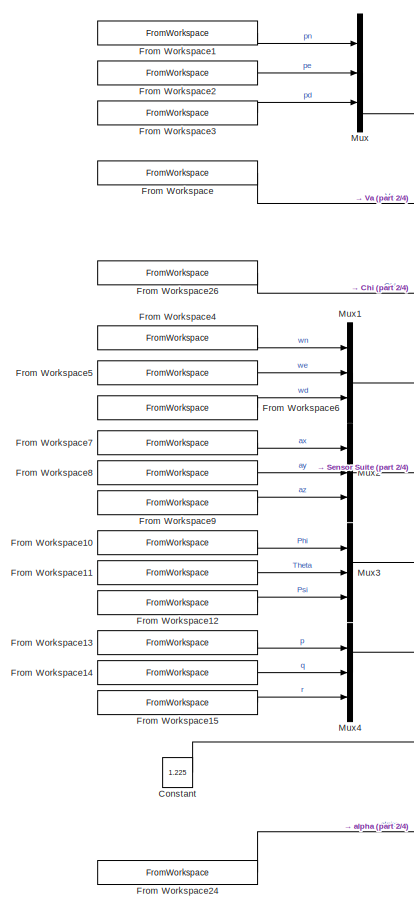
[diagram: root canvas - part 1/4, middle left region]
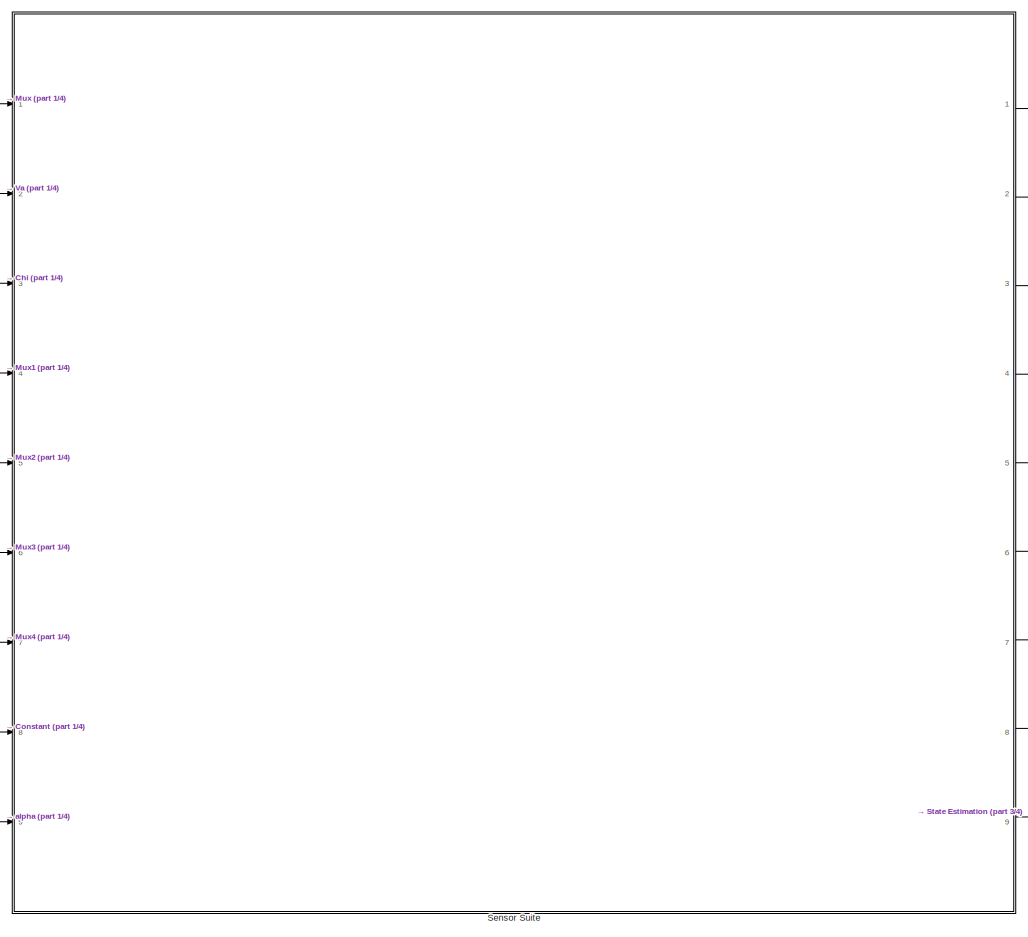
[diagram: root canvas - part 2/4, central region]
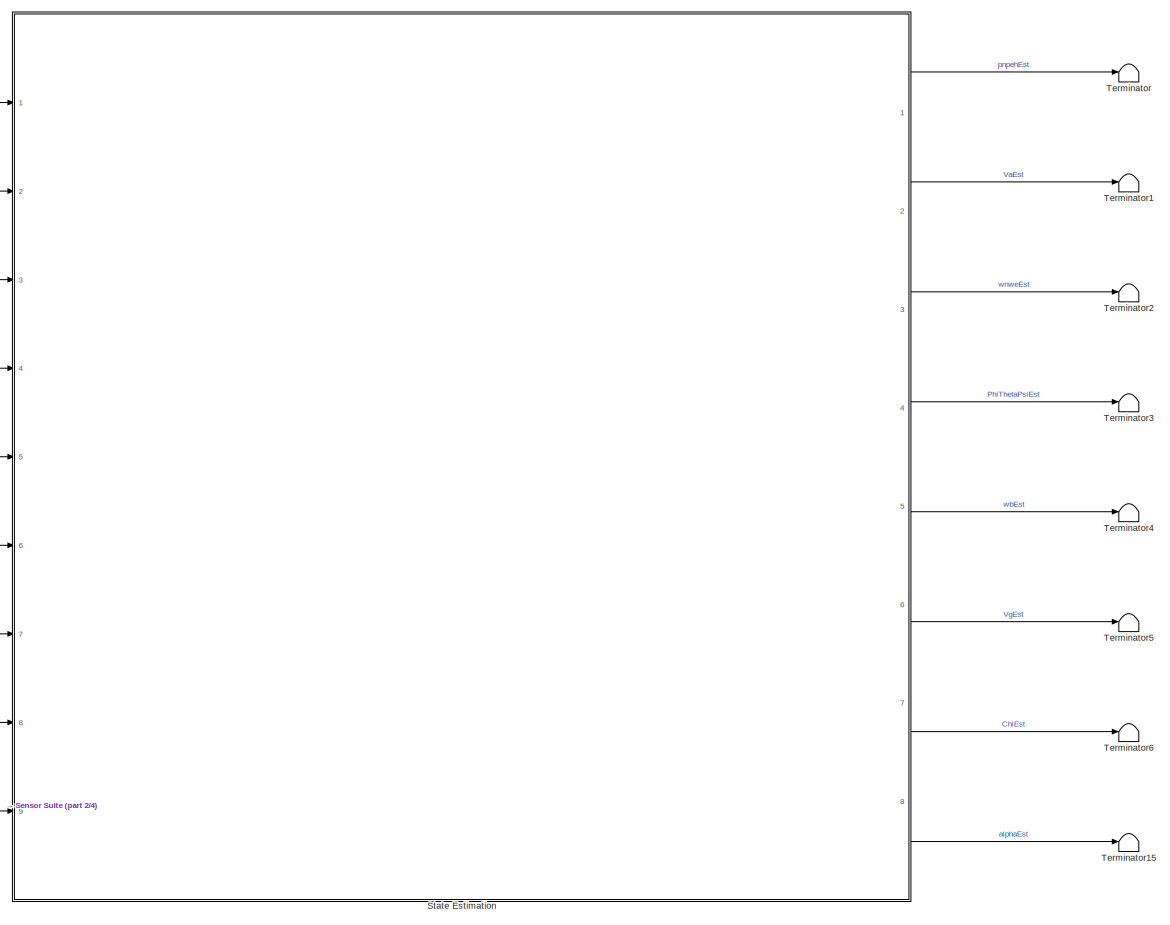
[diagram: root canvas - part 3/4, middle right region]
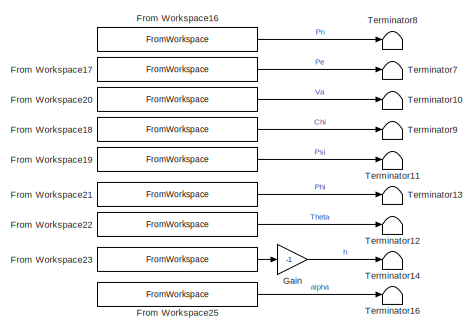
[diagram: root canvas - part 4/4, bottom center region]
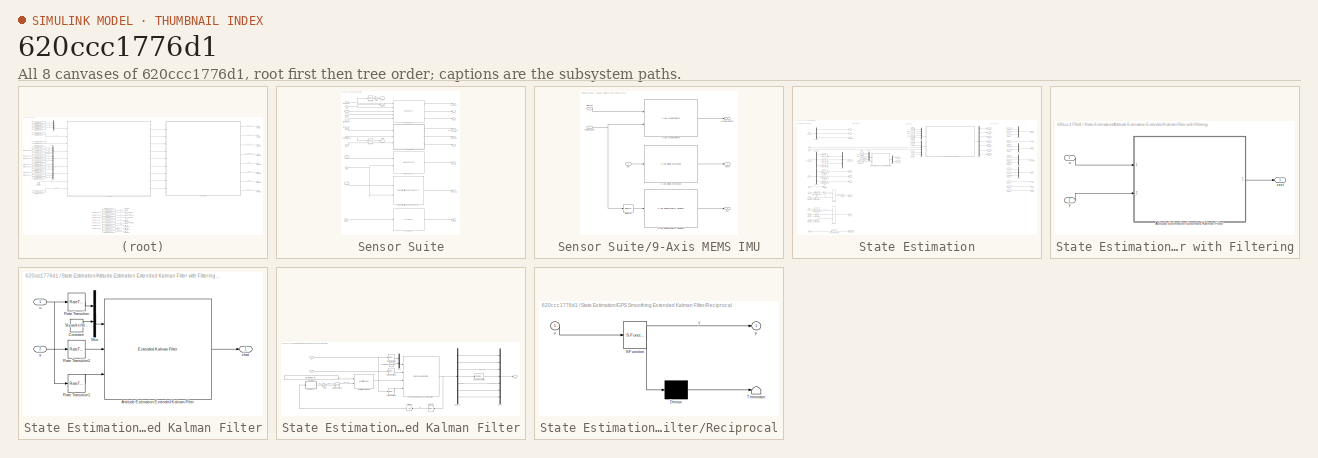
[diagram: thumbnail index - all 8 canvases of the model, root first then tree order]
MODEL slx_620ccc1776d1
KIND model
CONFIG AbsTol = auto
CONFIG EnableMultiTasking = off
CONFIG FixedStep = 0.001
CONFIG MaxStep = auto
CONFIG MinStep = auto
CONFIG RelTol = 1e-3
CONFIG SampleTimeConstraint = Unconstrained
CONFIG Solver = FixedStepAuto
CONFIG SolverName = FixedStepAuto
CONFIG StartTime = 0.0
CONFIG StopTime = 120
BLOCK [Constant] Constant
  Value = 1.225
BLOCK [FromWorkspace] From Workspace
  Interpolate = off
  OutputAfterFinalValue = Holding final value
  SampleTime = SkywalkerX8.Sensors.TestProfile.Time(2)
  VariableName = SkywalkerX8.Sensors.TestProfile.Va
  ZeroCross = on
BLOCK [FromWorkspace] From Workspace1
  Interpolate = off
  OutputAfterFinalValue = Holding final value
  SampleTime = SkywalkerX8.Sensors.TestProfile.Time(2)
  VariableName = SkywalkerX8.Sensors.TestProfile.Pn
  ZeroCross = on
BLOCK [FromWorkspace] From Workspace10
  Interpolate = off
  OutputAfterFinalValue = Holding final value
  SampleTime = SkywalkerX8.Sensors.TestProfile.Time(2)
  VariableName = SkywalkerX8.Sensors.TestProfile.Phi
  ZeroCross = on
BLOCK [FromWorkspace] From Workspace11
  Interpolate = off
  OutputAfterFinalValue = Holding final value
  SampleTime = SkywalkerX8.Sensors.TestProfile.Time(2)
  VariableName = SkywalkerX8.Sensors.TestProfile.Theta
  ZeroCross = on
BLOCK [FromWorkspace] From Workspace12
  Interpolate = off
  OutputAfterFinalValue = Holding final value
  SampleTime = SkywalkerX8.Sensors.TestProfile.Time(2)
  VariableName = SkywalkerX8.Sensors.TestProfile.Psi
  ZeroCross = on
BLOCK [FromWorkspace] From Workspace13
  Interpolate = off
  OutputAfterFinalValue = Holding final value
  SampleTime = SkywalkerX8.Sensors.TestProfile.Time(2)
  VariableName = SkywalkerX8.Sensors.TestProfile.p
  ZeroCross = on
BLOCK [FromWorkspace] From Workspace14
  Interpolate = off
  OutputAfterFinalValue = Holding final value
  SampleTime = SkywalkerX8.Sensors.TestProfile.Time(2)
  VariableName = SkywalkerX8.Sensors.TestProfile.q
  ZeroCross = on
BLOCK [FromWorkspace] From Workspace15
  Interpolate = off
  OutputAfterFinalValue = Holding final value
  SampleTime = SkywalkerX8.Sensors.TestProfile.Time(2)
  VariableName = SkywalkerX8.Sensors.TestProfile.r
  ZeroCross = on
BLOCK [FromWorkspace] From Workspace16
  Interpolate = off
  OutputAfterFinalValue = Holding final value
  VariableName = SkywalkerX8.Sensors.TestProfile.Pn
  ZeroCross = on
BLOCK [FromWorkspace] From Workspace17
  Interpolate = off
  OutputAfterFinalValue = Holding final value
  VariableName = SkywalkerX8.Sensors.TestProfile.Pe
  ZeroCross = on
BLOCK [FromWorkspace] From Workspace18
  Interpolate = off
  OutputAfterFinalValue = Holding final value
  VariableName = SkywalkerX8.Sensors.TestProfile.Chi
  ZeroCross = on
BLOCK [FromWorkspace] From Workspace19
  Interpolate = off
  OutputAfterFinalValue = Holding final value
  VariableName = SkywalkerX8.Sensors.TestProfile.Psi
  ZeroCross = on
BLOCK [FromWorkspace] From Workspace2
  Interpolate = off
  OutputAfterFinalValue = Holding final value
  SampleTime = SkywalkerX8.Sensors.TestProfile.Time(2)
  VariableName = SkywalkerX8.Sensors.TestProfile.Pe
  ZeroCross = on
BLOCK [FromWorkspace] From Workspace20
  Interpolate = off
  OutputAfterFinalValue = Holding final value
  VariableName = SkywalkerX8.Sensors.TestProfile.Va
  ZeroCross = on
BLOCK [FromWorkspace] From Workspace21
  Interpolate = off
  OutputAfterFinalValue = Holding final value
  VariableName = SkywalkerX8.Sensors.TestProfile.Phi
  ZeroCross = on
BLOCK [FromWorkspace] From Workspace22
  Interpolate = off
  OutputAfterFinalValue = Holding final value
  VariableName = SkywalkerX8.Sensors.TestProfile.Theta
  ZeroCross = on
BLOCK [FromWorkspace] From Workspace23
  Interpolate = off
  OutputAfterFinalValue = Holding final value
  SampleTime = SkywalkerX8.Sensors.TestProfile.Time(2)
  VariableName = SkywalkerX8.Sensors.TestProfile.Pd
  ZeroCross = on
BLOCK [FromWorkspace] From Workspace24
  Interpolate = off
  OutputAfterFinalValue = Holding final value
  SampleTime = SkywalkerX8.Sensors.TestProfile.Time(2)
  VariableName = SkywalkerX8.Sensors.TestProfile.alpha
  ZeroCross = on
BLOCK [FromWorkspace] From Workspace25
  Interpolate = off
  OutputAfterFinalValue = Holding final value
  SampleTime = SkywalkerX8.Sensors.TestProfile.Time(2)
  VariableName = SkywalkerX8.Sensors.TestProfile.alpha
  ZeroCross = on
BLOCK [FromWorkspace] From Workspace26
  Interpolate = off
  OutputAfterFinalValue = Holding final value
  SampleTime = SkywalkerX8.Sensors.TestProfile.Time(2)
  VariableName = SkywalkerX8.Sensors.TestProfile.Chi
  ZeroCross = on
BLOCK [FromWorkspace] From Workspace3
  Interpolate = off
  OutputAfterFinalValue = Holding final value
  SampleTime = SkywalkerX8.Sensors.TestProfile.Time(2)
  VariableName = SkywalkerX8.Sensors.TestProfile.Pd
  ZeroCross = on
BLOCK [FromWorkspace] From Workspace4
  Interpolate = off
  OutputAfterFinalValue = Holding final value
  SampleTime = SkywalkerX8.Sensors.TestProfile.Time(2)
  VariableName = SkywalkerX8.Sensors.TestProfile.wn
  ZeroCross = on
BLOCK [FromWorkspace] From Workspace5
  Interpolate = off
  OutputAfterFinalValue = Holding final value
  SampleTime = SkywalkerX8.Sensors.TestProfile.Time(2)
  VariableName = SkywalkerX8.Sensors.TestProfile.we
  ZeroCross = on
BLOCK [FromWorkspace] From Workspace6
  Interpolate = off
  OutputAfterFinalValue = Holding final value
  SampleTime = SkywalkerX8.Sensors.TestProfile.Time(2)
  VariableName = SkywalkerX8.Sensors.TestProfile.wd
  ZeroCross = on
BLOCK [FromWorkspace] From Workspace7
  Interpolate = off
  OutputAfterFinalValue = Holding final value
  SampleTime = SkywalkerX8.Sensors.TestProfile.Time(2)
  VariableName = SkywalkerX8.Sensors.TestProfile.ax
  ZeroCross = on
BLOCK [FromWorkspace] From Workspace8
  Interpolate = off
  OutputAfterFinalValue = Holding final value
  SampleTime = SkywalkerX8.Sensors.TestProfile.Time(2)
  VariableName = SkywalkerX8.Sensors.TestProfile.ay
  ZeroCross = on
BLOCK [FromWorkspace] From Workspace9
  Interpolate = off
  OutputAfterFinalValue = Holding final value
  SampleTime = SkywalkerX8.Sensors.TestProfile.Time(2)
  VariableName = SkywalkerX8.Sensors.TestProfile.az
  ZeroCross = on
BLOCK [Gain] Gain
  Gain = -1
  OutDataTypeStr = Inherit: Inherit via internal rule
  ParamDataTypeStr = Inherit: Inherit via internal rule
  SaturateOnIntegerOverflow = off
BLOCK [Mux] Mux
  DisplayOption = bar
  Inputs = 3
  Ports = [3, 1]
BLOCK [Mux] Mux1
  DisplayOption = bar
  Inputs = 3
  Ports = [3, 1]
BLOCK [Mux] Mux2
  DisplayOption = bar
  Inputs = 3
  Ports = [3, 1]
BLOCK [Mux] Mux3
  DisplayOption = bar
  Inputs = 3
  Ports = [3, 1]
BLOCK [Mux] Mux4
  DisplayOption = bar
  Inputs = 3
  Ports = [3, 1]
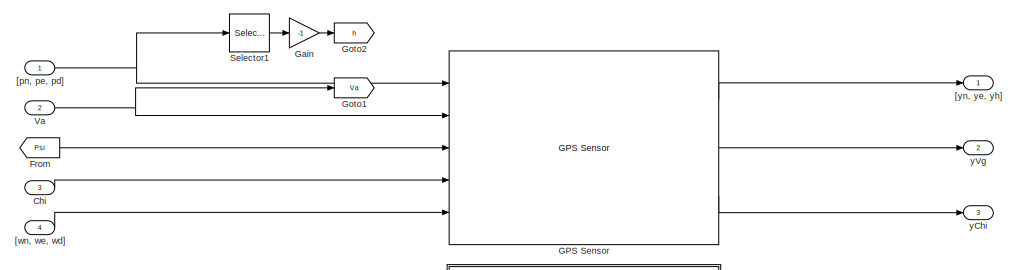
[diagram: Sensor Suite - part 1/2, full width, top band]
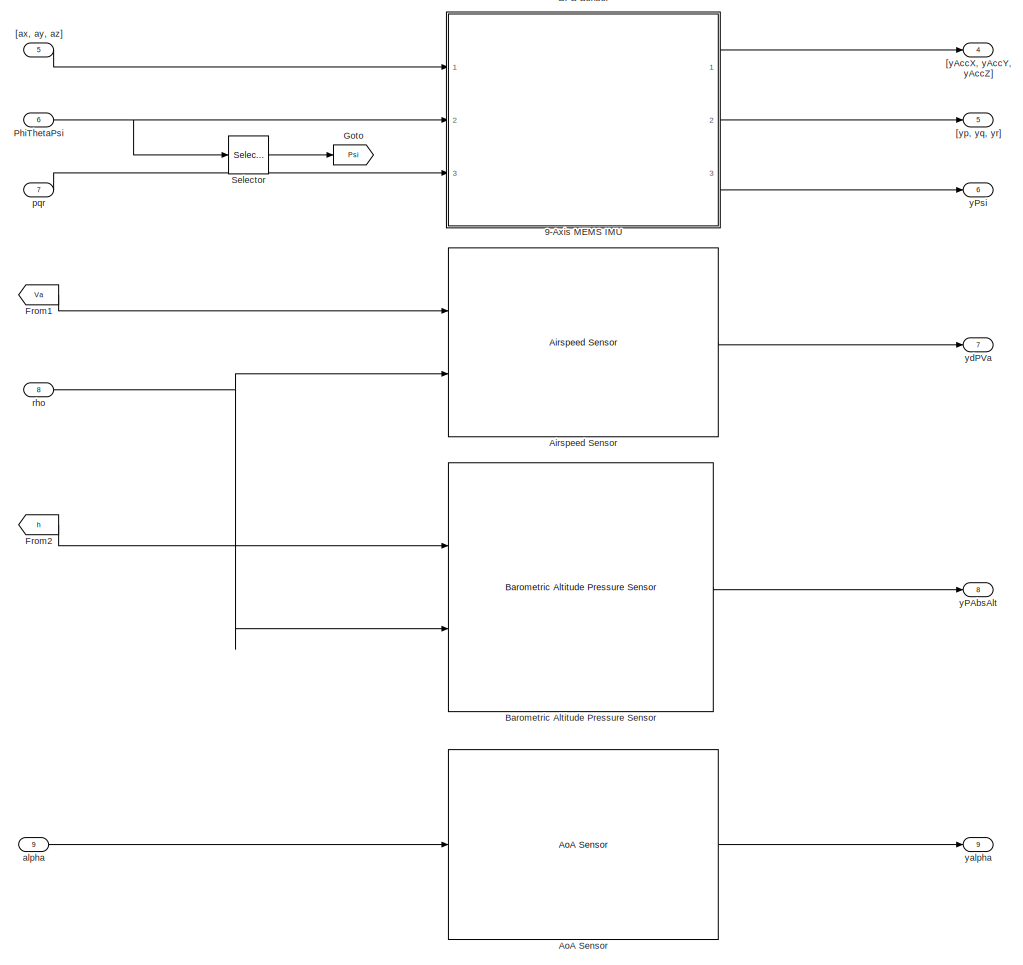
[diagram: Sensor Suite - part 2/2, most of the canvas]
BLOCK [SubSystem] Sensor Suite
  Ports = [9, 9]
  RequestExecContextInheritance = off
BLOCK [SubSystem] Sensor Suite/9-Axis MEMS IMU
  Ports = [3, 3]
  RequestExecContextInheritance = off
BLOCK [Reference] Sensor Suite/9-Axis MEMS IMU/3-Axis Accelerometer  REF=sensors/3-Axis Accelerometer  (lib defined in slx_03e243f1d19c, slx_0ec61ea8f7b5, +8 more)
  Ports = [2, 1]
  SourceBlock = sensors/3-Axis Accelerometer
BLOCK [Reference] Sensor Suite/9-Axis MEMS IMU/3-Axis MEMS Gyroscope  REF=sensors/3-Axis MEMS Gyroscope  (lib defined in slx_03e243f1d19c, slx_0ec61ea8f7b5, +8 more)
  Ports = [1, 1]
  SourceBlock = sensors/3-Axis MEMS Gyroscope
BLOCK [Reference] Sensor Suite/9-Axis MEMS IMU/3-Axis Magnetometer Compass  REF=sensors/3-Axis Magnetometer Compass  (lib defined in slx_03e243f1d19c, slx_0ec61ea8f7b5, +8 more)
  Ports = [1, 1]
  SourceBlock = sensors/3-Axis Magnetometer Compass
BLOCK [Inport] Sensor Suite/9-Axis MEMS IMU/PhiThetaPsi
  IconDisplay = Port number
  Port = 2
BLOCK [Selector] Sensor Suite/9-Axis MEMS IMU/Selector
  IndexOptions = Index vector (dialog)
  Indices = 3
  InputPortWidth = 3
  OutputSizes = 1
  Ports = [1, 1]
BLOCK [Inport] Sensor Suite/9-Axis MEMS IMU/ainertial
  IconDisplay = Port number
BLOCK [Inport] Sensor Suite/9-Axis MEMS IMU/pqr
  IconDisplay = Port number
  Port = 3
BLOCK [Outport] Sensor Suite/9-Axis MEMS IMU/yAccelerometer
  IconDisplay = Port number
BLOCK [Outport] Sensor Suite/9-Axis MEMS IMU/yGyro
  IconDisplay = Port number
  Port = 2
BLOCK [Outport] Sensor Suite/9-Axis MEMS IMU/yPsi
  IconDisplay = Port number
  Port = 3
BLOCK [Reference] Sensor Suite/Airspeed Sensor  REF=sensors/Airspeed Sensor  (lib defined in slx_03e243f1d19c, slx_0ec61ea8f7b5, +8 more)
  Ports = [2, 1]
  SourceBlock = sensors/Airspeed Sensor
BLOCK [Reference] Sensor Suite/AoA Sensor  REF=sensors/AoA Sensor  (lib defined in slx_03e243f1d19c, slx_0ec61ea8f7b5, +8 more)
  Ports = [1, 1]
  SourceBlock = sensors/AoA Sensor
BLOCK [Reference] Sensor Suite/Barometric Altitude Pressure Sensor  REF=sensors/Barometric Altitude Pressure Sensor  (lib defined in slx_03e243f1d19c, slx_0ec61ea8f7b5, +8 more)
  Ports = [2, 1]
  SourceBlock = sensors/Barometric Altitude Pressure Sensor
BLOCK [Inport] Sensor Suite/Chi
  IconDisplay = Port number
  Port = 3
BLOCK [From] Sensor Suite/From
  GotoTag = Psi
BLOCK [From] Sensor Suite/From1
  GotoTag = Va
BLOCK [From] Sensor Suite/From2
  GotoTag = h
BLOCK [Reference] Sensor Suite/GPS Sensor  REF=sensors/GPS Sensor  (lib defined in slx_03e243f1d19c, slx_0ec61ea8f7b5, +8 more)
  Ports = [5, 3]
  SourceBlock = sensors/GPS Sensor
BLOCK [Gain] Sensor Suite/Gain
  Gain = -1
  OutDataTypeStr = Inherit: Inherit via internal rule
  ParamDataTypeStr = Inherit: Inherit via internal rule
  SaturateOnIntegerOverflow = off
BLOCK [Goto] Sensor Suite/Goto
  GotoTag = Psi
BLOCK [Goto] Sensor Suite/Goto1
  GotoTag = Va
BLOCK [Goto] Sensor Suite/Goto2
  GotoTag = h
BLOCK [Inport] Sensor Suite/PhiThetaPsi
  IconDisplay = Port number
  Port = 6
BLOCK [Selector] Sensor Suite/Selector
  IndexOptions = Index vector (dialog)
  Indices = 3
  InputPortWidth = 3
  OutputSizes = 1
  Ports = [1, 1]
BLOCK [Selector] Sensor Suite/Selector1
  IndexOptions = Index vector (dialog)
  Indices = 3
  InputPortWidth = 3
  OutputSizes = 1
  Ports = [1, 1]
BLOCK [Inport] Sensor Suite/Va
  IconDisplay = Port number
  Port = 2
BLOCK [Inport] Sensor Suite/[ax, ay, az]
  IconDisplay = Port number
  Port = 5
BLOCK [Inport] Sensor Suite/[pn, pe, pd]
  IconDisplay = Port number
BLOCK [Inport] Sensor Suite/[wn, we, wd]
  IconDisplay = Port number
  Port = 4
BLOCK [Outport] Sensor Suite/[yAccX, yAccY, yAccZ]
  IconDisplay = Port number
  Port = 4
BLOCK [Outport] Sensor Suite/[yn, ye, yh]
  IconDisplay = Port number
BLOCK [Outport] Sensor Suite/[yp, yq, yr]
  IconDisplay = Port number
  Port = 5
BLOCK [Inport] Sensor Suite/alpha
  IconDisplay = Port number
  Port = 9
BLOCK [Inport] Sensor Suite/pqr
  IconDisplay = Port number
  Port = 7
BLOCK [Inport] Sensor Suite/rho
  IconDisplay = Port number
  Port = 8
BLOCK [Outport] Sensor Suite/yChi
  IconDisplay = Port number
  Port = 3
BLOCK [Outport] Sensor Suite/yPAbsAlt
  IconDisplay = Port number
  Port = 8
BLOCK [Outport] Sensor Suite/yPsi
  IconDisplay = Port number
  Port = 6
BLOCK [Outport] Sensor Suite/yVg
  IconDisplay = Port number
  Port = 2
BLOCK [Outport] Sensor Suite/yalpha
  IconDisplay = Port number
  Port = 9
BLOCK [Outport] Sensor Suite/ydPVa
  IconDisplay = Port number
  Port = 7
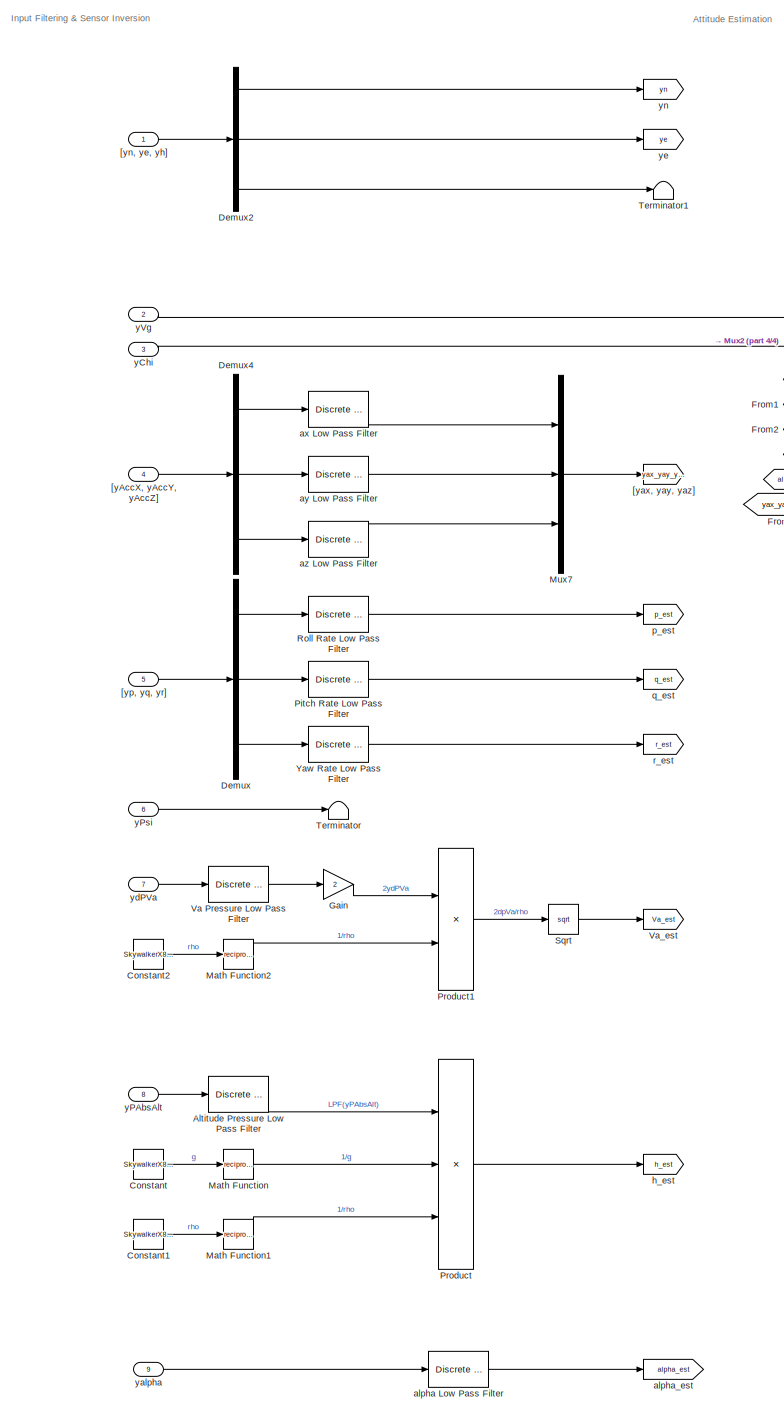
[diagram: State Estimation - part 1/4, left side, full height]
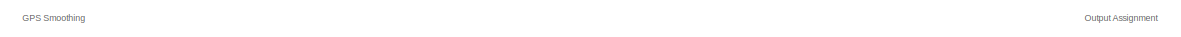
[diagram: State Estimation - part 2/4, top center region]
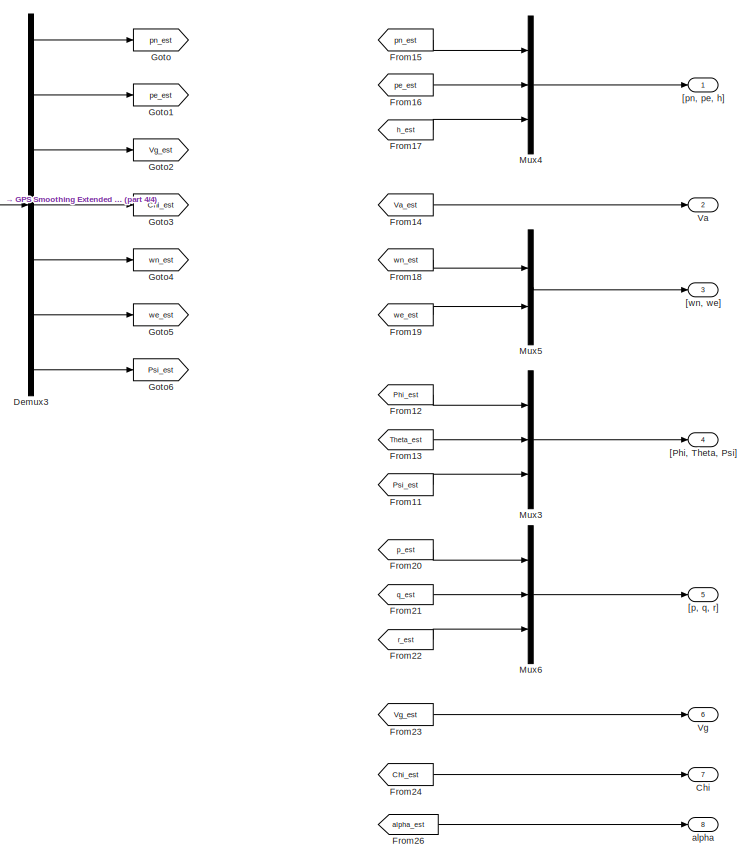
[diagram: State Estimation - part 3/4, middle right region]
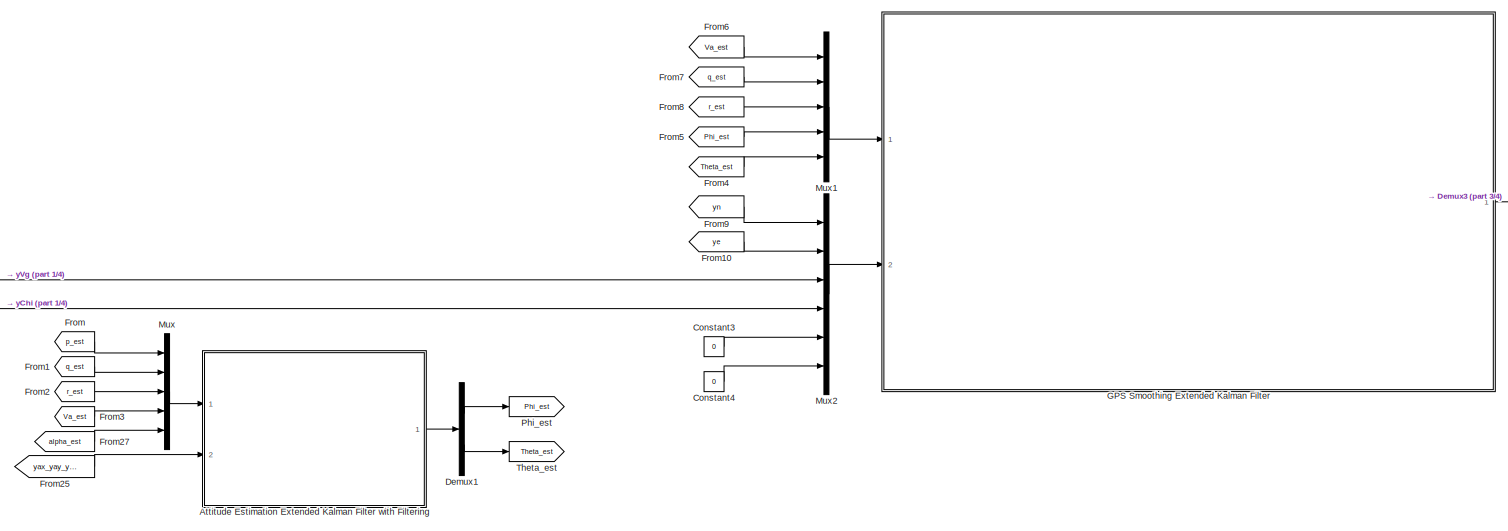
[diagram: State Estimation - part 4/4, top center region]
BLOCK [SubSystem] State Estimation
  Ports = [9, 8]
  RequestExecContextInheritance = off
BLOCK [Reference] State Estimation/Altitude Pressure Low Pass Filter  REF=simulink_extras/Additional
Discrete/Discrete
Transfer Fcn
(with initial outputs)
  Ports = [1, 1]
  SourceBlock = simulink_extras/Additional\nDiscrete/Discrete\nTransfer Fcn\n(with initial outputs)
  SourceProductBaseCode = SL
  SourceProductName = Simulink
  SourceType = Discrete Transfer Function with Initial Outputs
BLOCK [SubSystem] State Estimation/Attitude Estimation Extended Kalman Filter with Filtering
  Ports = [2, 1]
  RequestExecContextInheritance = off
BLOCK [SubSystem] State Estimation/Attitude Estimation Extended Kalman Filter with Filtering/Attitude Estimation Extended Kalman Filter
  Ports = [2, 1]
  RequestExecContextInheritance = off
BLOCK [Reference] State Estimation/Attitude Estimation Extended Kalman Filter with Filtering/Attitude Estimation Extended Kalman Filter/Attitude Estimation Extended Kalman Filter  REF=sharedTrackingLibrary/Extended Kalman Filter
  Ports = [3, 1]
  SourceBlock = sharedTrackingLibrary/Extended Kalman Filter
  SourceProductBaseCode = CT
  SourceProductName = Control System Toolbox
  SourceType = Extended Kalman Filter
BLOCK [Constant] State Estimation/Attitude Estimation Extended Kalman Filter with Filtering/Attitude Estimation Extended Kalman Filter/Constant
  Value = SkywalkerX8.Sensors.EKF.Attitude.StateTransitionSampleTime
BLOCK [Mux] State Estimation/Attitude Estimation Extended Kalman Filter with Filtering/Attitude Estimation Extended Kalman Filter/Mux
  DisplayOption = bar
  Inputs = 2
  Ports = [2, 1]
BLOCK [RateTransition] State Estimation/Attitude Estimation Extended Kalman Filter with Filtering/Attitude Estimation Extended Kalman Filter/Rate Transition
  InitialCondition = SkywalkerX8.Sensors.EKF.Attitude.InitialInput
  OutPortSampleTime = SkywalkerX8.Sensors.EKF.Attitude.StateTransitionSampleTime
BLOCK [RateTransition] State Estimation/Attitude Estimation Extended Kalman Filter with Filtering/Attitude Estimation Extended Kalman Filter/Rate Transition1
  InitialCondition = SkywalkerX8.Sensors.EKF.Attitude.InitialInput
  OutPortSampleTime = SkywalkerX8.Sensors.EKF.Attitude.MeasurementSampleTime
BLOCK [RateTransition] State Estimation/Attitude Estimation Extended Kalman Filter with Filtering/Attitude Estimation Extended Kalman Filter/Rate Transition2
  InitialCondition = SkywalkerX8.Sensors.EKF.Attitude.InitialMeasurement
  OutPortSampleTime = SkywalkerX8.Sensors.EKF.Attitude.MeasurementSampleTime
BLOCK [Inport] State Estimation/Attitude Estimation Extended Kalman Filter with Filtering/Attitude Estimation Extended Kalman Filter/u
  IconDisplay = Port number
BLOCK [Outport] State Estimation/Attitude Estimation Extended Kalman Filter with Filtering/Attitude Estimation Extended Kalman Filter/xhat
  IconDisplay = Port number
BLOCK [Inport] State Estimation/Attitude Estimation Extended Kalman Filter with Filtering/Attitude Estimation Extended Kalman Filter/y
  IconDisplay = Port number
  Port = 2
BLOCK [Inport] State Estimation/Attitude Estimation Extended Kalman Filter with Filtering/u
  IconDisplay = Port number
BLOCK [Outport] State Estimation/Attitude Estimation Extended Kalman Filter with Filtering/xest
  IconDisplay = Port number
BLOCK [Inport] State Estimation/Attitude Estimation Extended Kalman Filter with Filtering/y
  IconDisplay = Port number
  Port = 2
BLOCK [Outport] State Estimation/Chi
  IconDisplay = Port number
  Port = 7
BLOCK [Constant] State Estimation/Constant
  Value = SkywalkerX8.Sensors.StateEstimate.SensorInversion.AltitudePressure.Gravity
BLOCK [Constant] State Estimation/Constant1
  Value = SkywalkerX8.Sensors.StateEstimate.SensorInversion.AltitudePressure.Density
BLOCK [Constant] State Estimation/Constant2
  Value = SkywalkerX8.Sensors.StateEstimate.SensorInversion.AltitudePressure.Density
BLOCK [Constant] State Estimation/Constant3
  Value = 0
BLOCK [Constant] State Estimation/Constant4
  Value = 0
BLOCK [Demux] State Estimation/Demux
  DisplayOption = bar
  Outputs = 3
  Ports = [1, 3]
BLOCK [Demux] State Estimation/Demux1
  DisplayOption = bar
  Outputs = 2
  Ports = [1, 2]
BLOCK [Demux] State Estimation/Demux2
  DisplayOption = bar
  Outputs = 3
  Ports = [1, 3]
BLOCK [Demux] State Estimation/Demux3
  DisplayOption = bar
  Outputs = 7
  Ports = [1, 7]
BLOCK [Demux] State Estimation/Demux4
  DisplayOption = bar
  Outputs = 3
  Ports = [1, 3]
BLOCK [From] State Estimation/From
  GotoTag = p_est
BLOCK [From] State Estimation/From1
  GotoTag = q_est
BLOCK [From] State Estimation/From10
  GotoTag = ye
BLOCK [From] State Estimation/From11
  GotoTag = Psi_est
BLOCK [From] State Estimation/From12
  GotoTag = Phi_est
BLOCK [From] State Estimation/From13
  GotoTag = Theta_est
BLOCK [From] State Estimation/From14
  GotoTag = Va_est
BLOCK [From] State Estimation/From15
  GotoTag = pn_est
BLOCK [From] State Estimation/From16
  GotoTag = pe_est
BLOCK [From] State Estimation/From17
  GotoTag = h_est
BLOCK [From] State Estimation/From18
  GotoTag = wn_est
BLOCK [From] State Estimation/From19
  GotoTag = we_est
BLOCK [From] State Estimation/From2
  GotoTag = r_est
BLOCK [From] State Estimation/From20
  GotoTag = p_est
BLOCK [From] State Estimation/From21
  GotoTag = q_est
BLOCK [From] State Estimation/From22
  GotoTag = r_est
BLOCK [From] State Estimation/From23
  GotoTag = Vg_est
BLOCK [From] State Estimation/From24
  GotoTag = Chi_est
BLOCK [From] State Estimation/From25
  GotoTag = yax_yay_yaz
BLOCK [From] State Estimation/From26
  GotoTag = alpha_est
BLOCK [From] State Estimation/From27
  GotoTag = alpha_est
BLOCK [From] State Estimation/From3
  GotoTag = Va_est
BLOCK [From] State Estimation/From4
  GotoTag = Theta_est
BLOCK [From] State Estimation/From5
  GotoTag = Phi_est
BLOCK [From] State Estimation/From6
  GotoTag = Va_est
BLOCK [From] State Estimation/From7
  GotoTag = q_est
BLOCK [From] State Estimation/From8
  GotoTag = r_est
BLOCK [From] State Estimation/From9
  GotoTag = yn
BLOCK [SubSystem] State Estimation/GPS Smoothing Extended Kalman Filter
  Ports = [2, 1]
  RequestExecContextInheritance = off
BLOCK [Reference] State Estimation/GPS Smoothing Extended Kalman Filter/Chi Low Pass Filter  REF=simulink_extras/Additional
Discrete/Discrete
Transfer Fcn
(with initial outputs)
  Ports = [1, 1]
  SourceBlock = simulink_extras/Additional\nDiscrete/Discrete\nTransfer Fcn\n(with initial outputs)
  SourceProductBaseCode = SL
  SourceProductName = Simulink
  SourceType = Discrete Transfer Function with Initial Outputs
BLOCK [Constant] State Estimation/GPS Smoothing Extended Kalman Filter/Constant
  Value = SkywalkerX8.Sensors.EKF.GPSSmoothing.MeasurementCovarianceMatrix
BLOCK [Constant] State Estimation/GPS Smoothing Extended Kalman Filter/Constant1
  Value = SkywalkerX8.Sensors.EKF.GPSSmoothing.StateTransitionSampleTime
BLOCK [Demux] State Estimation/GPS Smoothing Extended Kalman Filter/Demux3
  DisplayOption = bar
  Outputs = 7
  Ports = [1, 7]
BLOCK [Reference] State Estimation/GPS Smoothing Extended Kalman Filter/GPS Smoothing Extended Kalman Filter  REF=sharedTrackingLibrary/Extended Kalman Filter
  Ports = [4, 1]
  SourceBlock = sharedTrackingLibrary/Extended Kalman Filter
  SourceProductBaseCode = CT
  SourceProductName = Control System Toolbox
  SourceType = Extended Kalman Filter
BLOCK [Gain] State Estimation/GPS Smoothing Extended Kalman Filter/Gain
  Gain = SkywalkerX8.Sensors.GPS.Velocity.StdDev
  OutDataTypeStr = Inherit: Inherit via internal rule
  ParamDataTypeStr = Inherit: Inherit via internal rule
  SaturateOnIntegerOverflow = off
BLOCK [Math] State Estimation/GPS Smoothing Extended Kalman Filter/Math Function1
  Operator = magnitude^2
  Ports = [1, 1]
BLOCK [Mux] State Estimation/GPS Smoothing Extended Kalman Filter/Mux
  DisplayOption = bar
  Inputs = 2
  Ports = [2, 1]
BLOCK [Mux] State Estimation/GPS Smoothing Extended Kalman Filter/Mux1
  DisplayOption = bar
  Inputs = 7
  Ports = [7, 1]
BLOCK [Reference] State Estimation/GPS Smoothing Extended Kalman Filter/Overwrite Chi Variance  REF=dspmtrx3/Overwrite Values
  Ports = [2, 1]
  SourceBlock = dspmtrx3/Overwrite Values
  SourceProductBaseCode = DS
  SourceProductName = DSP System Toolbox
  SourceType = Overwrite Values
BLOCK [RateTransition] State Estimation/GPS Smoothing Extended Kalman Filter/Rate Transition
  InitialCondition = SkywalkerX8.Sensors.EKF.GPSSmoothing.InitialInput
  OutPortSampleTime = SkywalkerX8.Sensors.EKF.GPSSmoothing.StateTransitionSampleTime
BLOCK [RateTransition] State Estimation/GPS Smoothing Extended Kalman Filter/Rate Transition1
  InitialCondition = SkywalkerX8.Sensors.EKF.GPSSmoothing.InitialInput
  OutPortSampleTime = SkywalkerX8.Sensors.EKF.GPSSmoothing.MeasurementSampleTime
BLOCK [RateTransition] State Estimation/GPS Smoothing Extended Kalman Filter/Rate Transition2
  InitialCondition = SkywalkerX8.Sensors.EKF.GPSSmoothing.InitialMeasurement
  OutPortSampleTime = SkywalkerX8.Sensors.EKF.GPSSmoothing.MeasurementSampleTime
BLOCK [SubSystem] State Estimation/GPS Smoothing Extended Kalman Filter/Reciprocal
  ErrorFcn = Stateflow.Translate.translate
  PermitHierarchicalResolution = ExplicitOnly
  Ports = [1, 1]
  RequestExecContextInheritance = off
  SFBlockType = MATLAB Function
  TreatAsAtomicUnit = on
BLOCK [Demux] State Estimation/GPS Smoothing Extended Kalman Filter/Reciprocal/ Demux 
  Outputs = 1
  Ports = [1, 1]
BLOCK [S-Function] State Estimation/GPS Smoothing Extended Kalman Filter/Reciprocal/ SFunction 
  EnableBusSupport = on
  FunctionName = sf_sfun
  PortCounts = [1 2]
  Ports = [1, 2]
  SFcnIsStateOwnerBlock = off
  SFunctionDeploymentMode = off
  Tag = Stateflow S-Function SkywalkerX8_StateEstimation 4
BLOCK [Terminator] State Estimation/GPS Smoothing Extended Kalman Filter/Reciprocal/ Terminator 
BLOCK [Inport] State Estimation/GPS Smoothing Extended Kalman Filter/Reciprocal/u
  IconDisplay = Port number
BLOCK [Outport] State Estimation/GPS Smoothing Extended Kalman Filter/Reciprocal/y
  IconDisplay = Port number
BLOCK [Selector] State Estimation/GPS Smoothing Extended Kalman Filter/Selector
  IndexOptions = Index vector (dialog)
  Indices = 3
  InputPortWidth = 7
  OutputSizes = 1
  Ports = [1, 1]
BLOCK [UnitDelay] State Estimation/GPS Smoothing Extended Kalman Filter/Unit Delay
  InitialCondition = SkywalkerX8.Sensors.EKF.GPSSmoothing.InitialState(3)
  InputProcessing = Elements as channels (sample based)
  SampleTime = SkywalkerX8.Sensors.EKF.GPSSmoothing.MeasurementSampleTime
BLOCK [Inport] State Estimation/GPS Smoothing Extended Kalman Filter/u
  IconDisplay = Port number
  PortDimensions = 5
BLOCK [Outport] State Estimation/GPS Smoothing Extended Kalman Filter/xhat
  IconDisplay = Port number
BLOCK [Inport] State Estimation/GPS Smoothing Extended Kalman Filter/y
  IconDisplay = Port number
  Port = 2
  PortDimensions = 6
BLOCK [Gain] State Estimation/Gain
  Gain = 2
  OutDataTypeStr = Inherit: Inherit via internal rule
  ParamDataTypeStr = Inherit: Inherit via internal rule
  SaturateOnIntegerOverflow = off
BLOCK [Goto] State Estimation/Goto
  GotoTag = pn_est
BLOCK [Goto] State Estimation/Goto1
  GotoTag = pe_est
BLOCK [Goto] State Estimation/Goto2
  GotoTag = Vg_est
BLOCK [Goto] State Estimation/Goto3
  GotoTag = Chi_est
BLOCK [Goto] State Estimation/Goto4
  GotoTag = wn_est
BLOCK [Goto] State Estimation/Goto5
  GotoTag = we_est
BLOCK [Goto] State Estimation/Goto6
  GotoTag = Psi_est
BLOCK [Math] State Estimation/Math Function
  Operator = reciprocal
  Ports = [1, 1]
BLOCK [Math] State Estimation/Math Function1
  Operator = reciprocal
  Ports = [1, 1]
BLOCK [Math] State Estimation/Math Function2
  Operator = reciprocal
  Ports = [1, 1]
BLOCK [Mux] State Estimation/Mux
  DisplayOption = bar
  Inputs = 5
  Ports = [5, 1]
BLOCK [Mux] State Estimation/Mux1
  DisplayOption = bar
  Inputs = 5
  Ports = [5, 1]
BLOCK [Mux] State Estimation/Mux2
  DisplayOption = bar
  Inputs = 6
  Ports = [6, 1]
BLOCK [Mux] State Estimation/Mux3
  DisplayOption = bar
  Inputs = 3
  Ports = [3, 1]
BLOCK [Mux] State Estimation/Mux4
  DisplayOption = bar
  Inputs = 3
  Ports = [3, 1]
BLOCK [Mux] State Estimation/Mux5
  DisplayOption = bar
  Inputs = 2
  Ports = [2, 1]
BLOCK [Mux] State Estimation/Mux6
  DisplayOption = bar
  Inputs = 3
  Ports = [3, 1]
BLOCK [Mux] State Estimation/Mux7
  DisplayOption = bar
  Inputs = 3
  Ports = [3, 1]
BLOCK [Goto] State Estimation/Phi_est
  GotoTag = Phi_est
BLOCK [Reference] State Estimation/Pitch Rate Low Pass Filter  REF=simulink_extras/Additional
Discrete/Discrete
Transfer Fcn
(with initial outputs)
  Ports = [1, 1]
  SourceBlock = simulink_extras/Additional\nDiscrete/Discrete\nTransfer Fcn\n(with initial outputs)
  SourceProductBaseCode = SL
  SourceProductName = Simulink
  SourceType = Discrete Transfer Function with Initial Outputs
BLOCK [Product] State Estimation/Product
  InputSameDT = off
  Inputs = 3
  OutDataTypeStr = Inherit: Inherit via internal rule
  Ports = [3, 1]
  RndMeth = Floor
  SaturateOnIntegerOverflow = off
BLOCK [Product] State Estimation/Product1
  InputSameDT = off
  OutDataTypeStr = Inherit: Inherit via internal rule
  Ports = [2, 1]
  RndMeth = Floor
  SaturateOnIntegerOverflow = off
BLOCK [Reference] State Estimation/Roll Rate Low Pass Filter  REF=simulink_extras/Additional
Discrete/Discrete
Transfer Fcn
(with initial outputs)
  Ports = [1, 1]
  SourceBlock = simulink_extras/Additional\nDiscrete/Discrete\nTransfer Fcn\n(with initial outputs)
  SourceProductBaseCode = SL
  SourceProductName = Simulink
  SourceType = Discrete Transfer Function with Initial Outputs
BLOCK [Sqrt] State Estimation/Sqrt
BLOCK [Terminator] State Estimation/Terminator
BLOCK [Terminator] State Estimation/Terminator1
BLOCK [Goto] State Estimation/Theta_est
  GotoTag = Theta_est
BLOCK [Outport] State Estimation/Va
  IconDisplay = Port number
  Port = 2
BLOCK [Reference] State Estimation/Va Pressure Low Pass Filter  REF=simulink_extras/Additional
Discrete/Discrete
Transfer Fcn
(with initial outputs)
  Ports = [1, 1]
  SourceBlock = simulink_extras/Additional\nDiscrete/Discrete\nTransfer Fcn\n(with initial outputs)
  SourceProductBaseCode = SL
  SourceProductName = Simulink
  SourceType = Discrete Transfer Function with Initial Outputs
BLOCK [Goto] State Estimation/Va_est
  GotoTag = Va_est
BLOCK [Outport] State Estimation/Vg
  IconDisplay = Port number
  Port = 6
BLOCK [Reference] State Estimation/Yaw Rate Low Pass Filter  REF=simulink_extras/Additional
Discrete/Discrete
Transfer Fcn
(with initial outputs)
  Ports = [1, 1]
  SourceBlock = simulink_extras/Additional\nDiscrete/Discrete\nTransfer Fcn\n(with initial outputs)
  SourceProductBaseCode = SL
  SourceProductName = Simulink
  SourceType = Discrete Transfer Function with Initial Outputs
BLOCK [Outport] State Estimation/[Phi, Theta, Psi]
  IconDisplay = Port number
  Port = 4
BLOCK [Outport] State Estimation/[p, q, r]
  IconDisplay = Port number
  Port = 5
BLOCK [Outport] State Estimation/[pn, pe, h]
  IconDisplay = Port number
BLOCK [Outport] State Estimation/[wn, we]
  IconDisplay = Port number
  Port = 3
BLOCK [Inport] State Estimation/[yAccX, yAccY, yAccZ]
  IconDisplay = Port number
  Port = 4
  PortDimensions = 3
BLOCK [Goto] State Estimation/[yax, yay, yaz]
  GotoTag = yax_yay_yaz
BLOCK [Inport] State Estimation/[yn, ye, yh]
  IconDisplay = Port number
  PortDimensions = 3
BLOCK [Inport] State Estimation/[yp, yq, yr]
  IconDisplay = Port number
  Port = 5
  PortDimensions = 3
BLOCK [Outport] State Estimation/alpha
  IconDisplay = Port number
  Port = 8
BLOCK [Reference] State Estimation/alpha Low Pass Filter  REF=simulink_extras/Additional
Discrete/Discrete
Transfer Fcn
(with initial outputs)
  Ports = [1, 1]
  SourceBlock = simulink_extras/Additional\nDiscrete/Discrete\nTransfer Fcn\n(with initial outputs)
  SourceProductBaseCode = SL
  SourceProductName = Simulink
  SourceType = Discrete Transfer Function with Initial Outputs
BLOCK [Goto] State Estimation/alpha_est
  GotoTag = alpha_est
BLOCK [Reference] State Estimation/ax Low Pass Filter  REF=simulink_extras/Additional
Discrete/Discrete
Transfer Fcn
(with initial outputs)
  Ports = [1, 1]
  SourceBlock = simulink_extras/Additional\nDiscrete/Discrete\nTransfer Fcn\n(with initial outputs)
  SourceProductBaseCode = SL
  SourceProductName = Simulink
  SourceType = Discrete Transfer Function with Initial Outputs
BLOCK [Reference] State Estimation/ay Low Pass Filter  REF=simulink_extras/Additional
Discrete/Discrete
Transfer Fcn
(with initial outputs)
  Ports = [1, 1]
  SourceBlock = simulink_extras/Additional\nDiscrete/Discrete\nTransfer Fcn\n(with initial outputs)
  SourceProductBaseCode = SL
  SourceProductName = Simulink
  SourceType = Discrete Transfer Function with Initial Outputs
BLOCK [Reference] State Estimation/az Low Pass Filter  REF=simulink_extras/Additional
Discrete/Discrete
Transfer Fcn
(with initial outputs)
  Ports = [1, 1]
  SourceBlock = simulink_extras/Additional\nDiscrete/Discrete\nTransfer Fcn\n(with initial outputs)
  SourceProductBaseCode = SL
  SourceProductName = Simulink
  SourceType = Discrete Transfer Function with Initial Outputs
BLOCK [Goto] State Estimation/h_est
  GotoTag = h_est
BLOCK [Goto] State Estimation/p_est
  GotoTag = p_est
BLOCK [Goto] State Estimation/q_est
  GotoTag = q_est
BLOCK [Goto] State Estimation/r_est
  GotoTag = r_est
BLOCK [Inport] State Estimation/yChi
  IconDisplay = Port number
  Port = 3
BLOCK [Inport] State Estimation/yPAbsAlt
  IconDisplay = Port number
  Port = 8
BLOCK [Inport] State Estimation/yPsi
  IconDisplay = Port number
  Port = 6
BLOCK [Inport] State Estimation/yVg
  IconDisplay = Port number
  Port = 2
BLOCK [Inport] State Estimation/yalpha
  IconDisplay = Port number
  Port = 9
BLOCK [Inport] State Estimation/ydPVa
  IconDisplay = Port number
  Port = 7
BLOCK [Goto] State Estimation/ye
  GotoTag = ye
BLOCK [Goto] State Estimation/yn
  GotoTag = yn
BLOCK [Terminator] Terminator
BLOCK [Terminator] Terminator1
BLOCK [Terminator] Terminator10
BLOCK [Terminator] Terminator11
BLOCK [Terminator] Terminator12
BLOCK [Terminator] Terminator13
BLOCK [Terminator] Terminator14
BLOCK [Terminator] Terminator15
BLOCK [Terminator] Terminator16
BLOCK [Terminator] Terminator2
BLOCK [Terminator] Terminator3
BLOCK [Terminator] Terminator4
BLOCK [Terminator] Terminator5
BLOCK [Terminator] Terminator6
BLOCK [Terminator] Terminator7
BLOCK [Terminator] Terminator8
BLOCK [Terminator] Terminator9
ANNOTATION State Estimation: Attitude Estimation
ANNOTATION State Estimation: GPS Smoothing
ANNOTATION State Estimation: Input Filtering & Sensor Inversion
ANNOTATION State Estimation: Output Assignment
LINE Constant:1 -> Sensor Suite:8
LINE From Workspace10:1 -> Mux3:1
LINE From Workspace11:1 -> Mux3:2
LINE From Workspace12:1 -> Mux3:3
LINE From Workspace13:1 -> Mux4:1
LINE From Workspace14:1 -> Mux4:2
LINE From Workspace15:1 -> Mux4:3
LINE From Workspace16:1 -> Terminator8:1
LINE From Workspace17:1 -> Terminator7:1
LINE From Workspace18:1 -> Terminator9:1
LINE From Workspace19:1 -> Terminator11:1
LINE From Workspace1:1 -> Mux:1
LINE From Workspace20:1 -> Terminator10:1
LINE From Workspace21:1 -> Terminator13:1
LINE From Workspace22:1 -> Terminator12:1
LINE From Workspace23:1 -> Gain:1
LINE From Workspace24:1 -> Sensor Suite:9
LINE From Workspace25:1 -> Terminator16:1
LINE From Workspace26:1 -> Sensor Suite:3
LINE From Workspace2:1 -> Mux:2
LINE From Workspace3:1 -> Mux:3
LINE From Workspace4:1 -> Mux1:1
LINE From Workspace5:1 -> Mux1:2
LINE From Workspace6:1 -> Mux1:3
LINE From Workspace7:1 -> Mux2:1
LINE From Workspace8:1 -> Mux2:2
LINE From Workspace9:1 -> Mux2:3
LINE From Workspace:1 -> Sensor Suite:2
LINE Gain:1 -> Terminator14:1
LINE Mux1:1 -> Sensor Suite:4
LINE Mux2:1 -> Sensor Suite:5
LINE Mux3:1 -> Sensor Suite:6
LINE Mux4:1 -> Sensor Suite:7
LINE Mux:1 -> Sensor Suite:1
LINE Sensor Suite/9-Axis MEMS IMU/3-Axis Accelerometer:1 -> Sensor Suite/9-Axis MEMS IMU/yAccelerometer:1
LINE Sensor Suite/9-Axis MEMS IMU/3-Axis MEMS Gyroscope:1 -> Sensor Suite/9-Axis MEMS IMU/yGyro:1
LINE Sensor Suite/9-Axis MEMS IMU/3-Axis Magnetometer Compass:1 -> Sensor Suite/9-Axis MEMS IMU/yPsi:1
NET Sensor Suite/9-Axis MEMS IMU/PhiThetaPsi:1 -> Sensor Suite/9-Axis MEMS IMU/3-Axis Accelerometer:2, Sensor Suite/9-Axis MEMS IMU/Selector:1
LINE Sensor Suite/9-Axis MEMS IMU/Selector:1 -> Sensor Suite/9-Axis MEMS IMU/3-Axis Magnetometer Compass:1
LINE Sensor Suite/9-Axis MEMS IMU/ainertial:1 -> Sensor Suite/9-Axis MEMS IMU/3-Axis Accelerometer:1
LINE Sensor Suite/9-Axis MEMS IMU/pqr:1 -> Sensor Suite/9-Axis MEMS IMU/3-Axis MEMS Gyroscope:1
LINE Sensor Suite/9-Axis MEMS IMU:1 -> Sensor Suite/[yAccX, yAccY, yAccZ]:1
LINE Sensor Suite/9-Axis MEMS IMU:2 -> Sensor Suite/[yp, yq, yr]:1
LINE Sensor Suite/9-Axis MEMS IMU:3 -> Sensor Suite/yPsi:1
LINE Sensor Suite/Airspeed Sensor:1 -> Sensor Suite/ydPVa:1
LINE Sensor Suite/AoA Sensor:1 -> Sensor Suite/yalpha:1
LINE Sensor Suite/Barometric Altitude Pressure Sensor:1 -> Sensor Suite/yPAbsAlt:1
LINE Sensor Suite/Chi:1 -> Sensor Suite/GPS Sensor:4
LINE Sensor Suite/From1:1 -> Sensor Suite/Airspeed Sensor:1
LINE Sensor Suite/From2:1 -> Sensor Suite/Barometric Altitude Pressure Sensor:1
LINE Sensor Suite/From:1 -> Sensor Suite/GPS Sensor:3
LINE Sensor Suite/GPS Sensor:1 -> Sensor Suite/[yn, ye, yh]:1
LINE Sensor Suite/GPS Sensor:2 -> Sensor Suite/yVg:1
LINE Sensor Suite/GPS Sensor:3 -> Sensor Suite/yChi:1
LINE Sensor Suite/Gain:1 -> Sensor Suite/Goto2:1
NET Sensor Suite/PhiThetaPsi:1 -> Sensor Suite/9-Axis MEMS IMU:2, Sensor Suite/Selector:1
LINE Sensor Suite/Selector1:1 -> Sensor Suite/Gain:1
LINE Sensor Suite/Selector:1 -> Sensor Suite/Goto:1
NET Sensor Suite/Va:1 -> Sensor Suite/GPS Sensor:2, Sensor Suite/Goto1:1
LINE Sensor Suite/[ax, ay, az]:1 -> Sensor Suite/9-Axis MEMS IMU:1
NET Sensor Suite/[pn, pe, pd]:1 -> Sensor Suite/GPS Sensor:1, Sensor Suite/Selector1:1
LINE Sensor Suite/[wn, we, wd]:1 -> Sensor Suite/GPS Sensor:5
LINE Sensor Suite/alpha:1 -> Sensor Suite/AoA Sensor:1
LINE Sensor Suite/pqr:1 -> Sensor Suite/9-Axis MEMS IMU:3
NET Sensor Suite/rho:1 -> Sensor Suite/Airspeed Sensor:2, Sensor Suite/Barometric Altitude Pressure Sensor:2
LINE Sensor Suite:1 -> State Estimation:1
LINE Sensor Suite:2 -> State Estimation:2
LINE Sensor Suite:3 -> State Estimation:3
LINE Sensor Suite:4 -> State Estimation:4
LINE Sensor Suite:5 -> State Estimation:5
LINE Sensor Suite:6 -> State Estimation:6
LINE Sensor Suite:7 -> State Estimation:7
LINE Sensor Suite:8 -> State Estimation:8
LINE Sensor Suite:9 -> State Estimation:9
LINE State Estimation/Altitude Pressure Low Pass Filter:1 -> State Estimation/Product:1
LINE State Estimation/Attitude Estimation Extended Kalman Filter with Filtering/Attitude Estimation Extended Kalman Filter/Attitude Estimation Extended Kalman Filter:1 -> State Estimation/Attitude Estimation Extended Kalman Filter with Filtering/Attitude Estimation Extended Kalman Filter/xhat:1
LINE State Estimation/Attitude Estimation Extended Kalman Filter with Filtering/Attitude Estimation Extended Kalman Filter/Constant:1 -> State Estimation/Attitude Estimation Extended Kalman Filter with Filtering/Attitude Estimation Extended Kalman Filter/Mux:2
LINE State Estimation/Attitude Estimation Extended Kalman Filter with Filtering/Attitude Estimation Extended Kalman Filter/Mux:1 -> State Estimation/Attitude Estimation Extended Kalman Filter with Filtering/Attitude Estimation Extended Kalman Filter/Attitude Estimation Extended Kalman Filter:1
LINE State Estimation/Attitude Estimation Extended Kalman Filter with Filtering/Attitude Estimation Extended Kalman Filter/Rate Transition1:1 -> State Estimation/Attitude Estimation Extended Kalman Filter with Filtering/Attitude Estimation Extended Kalman Filter/Attitude Estimation Extended Kalman Filter:3
LINE State Estimation/Attitude Estimation Extended Kalman Filter with Filtering/Attitude Estimation Extended Kalman Filter/Rate Transition2:1 -> State Estimation/Attitude Estimation Extended Kalman Filter with Filtering/Attitude Estimation Extended Kalman Filter/Attitude Estimation Extended Kalman Filter:2
LINE State Estimation/Attitude Estimation Extended Kalman Filter with Filtering/Attitude Estimation Extended Kalman Filter/Rate Transition:1 -> State Estimation/Attitude Estimation Extended Kalman Filter with Filtering/Attitude Estimation Extended Kalman Filter/Mux:1
NET State Estimation/Attitude Estimation Extended Kalman Filter with Filtering/Attitude Estimation Extended Kalman Filter/u:1 -> State Estimation/Attitude Estimation Extended Kalman Filter with Filtering/Attitude Estimation Extended Kalman Filter/Rate Transition1:1, State Estimation/Attitude Estimation Extended Kalman Filter with Filtering/Attitude Estimation Extended Kalman Filter/Rate Transition:1
LINE State Estimation/Attitude Estimation Extended Kalman Filter with Filtering/Attitude Estimation Extended Kalman Filter/y:1 -> State Estimation/Attitude Estimation Extended Kalman Filter with Filtering/Attitude Estimation Extended Kalman Filter/Rate Transition2:1
LINE State Estimation/Attitude Estimation Extended Kalman Filter with Filtering/Attitude Estimation Extended Kalman Filter:1 -> State Estimation/Attitude Estimation Extended Kalman Filter with Filtering/xest:1
LINE State Estimation/Attitude Estimation Extended Kalman Filter with Filtering/u:1 -> State Estimation/Attitude Estimation Extended Kalman Filter with Filtering/Attitude Estimation Extended Kalman Filter:1
LINE State Estimation/Attitude Estimation Extended Kalman Filter with Filtering/y:1 -> State Estimation/Attitude Estimation Extended Kalman Filter with Filtering/Attitude Estimation Extended Kalman Filter:2
LINE State Estimation/Attitude Estimation Extended Kalman Filter with Filtering:1 -> State Estimation/Demux1:1
LINE State Estimation/Constant1:1 -> State Estimation/Math Function1:1
LINE State Estimation/Constant2:1 -> State Estimation/Math Function2:1
LINE State Estimation/Constant3:1 -> State Estimation/Mux2:5
LINE State Estimation/Constant4:1 -> State Estimation/Mux2:6
LINE State Estimation/Constant:1 -> State Estimation/Math Function:1
LINE State Estimation/Demux1:1 -> State Estimation/Phi_est:1
LINE State Estimation/Demux1:2 -> State Estimation/Theta_est:1
LINE State Estimation/Demux2:1 -> State Estimation/yn:1
LINE State Estimation/Demux2:2 -> State Estimation/ye:1
LINE State Estimation/Demux2:3 -> State Estimation/Terminator1:1
LINE State Estimation/Demux3:1 -> State Estimation/Goto:1
LINE State Estimation/Demux3:2 -> State Estimation/Goto1:1
LINE State Estimation/Demux3:3 -> State Estimation/Goto2:1
LINE State Estimation/Demux3:4 -> State Estimation/Goto3:1
LINE State Estimation/Demux3:5 -> State Estimation/Goto4:1
LINE State Estimation/Demux3:6 -> State Estimation/Goto5:1
LINE State Estimation/Demux3:7 -> State Estimation/Goto6:1
LINE State Estimation/Demux4:1 -> State Estimation/ax Low Pass Filter:1
LINE State Estimation/Demux4:2 -> State Estimation/ay Low Pass Filter:1
LINE State Estimation/Demux4:3 -> State Estimation/az Low Pass Filter:1
LINE State Estimation/Demux:1 -> State Estimation/Roll Rate Low Pass Filter:1
LINE State Estimation/Demux:2 -> State Estimation/Pitch Rate Low Pass Filter:1
LINE State Estimation/Demux:3 -> State Estimation/Yaw Rate Low Pass Filter:1
LINE State Estimation/From10:1 -> State Estimation/Mux2:2
LINE State Estimation/From11:1 -> State Estimation/Mux3:3
LINE State Estimation/From12:1 -> State Estimation/Mux3:1
LINE State Estimation/From13:1 -> State Estimation/Mux3:2
LINE State Estimation/From14:1 -> State Estimation/Va:1
LINE State Estimation/From15:1 -> State Estimation/Mux4:1
LINE State Estimation/From16:1 -> State Estimation/Mux4:2
LINE State Estimation/From17:1 -> State Estimation/Mux4:3
LINE State Estimation/From18:1 -> State Estimation/Mux5:1
LINE State Estimation/From19:1 -> State Estimation/Mux5:2
LINE State Estimation/From1:1 -> State Estimation/Mux:2
LINE State Estimation/From20:1 -> State Estimation/Mux6:1
LINE State Estimation/From21:1 -> State Estimation/Mux6:2
LINE State Estimation/From22:1 -> State Estimation/Mux6:3
LINE State Estimation/From23:1 -> State Estimation/Vg:1
LINE State Estimation/From24:1 -> State Estimation/Chi:1
LINE State Estimation/From25:1 -> State Estimation/Attitude Estimation Extended Kalman Filter with Filtering:2
LINE State Estimation/From26:1 -> State Estimation/alpha:1
LINE State Estimation/From27:1 -> State Estimation/Mux:5
LINE State Estimation/From2:1 -> State Estimation/Mux:3
LINE State Estimation/From3:1 -> State Estimation/Mux:4
LINE State Estimation/From4:1 -> State Estimation/Mux1:5
LINE State Estimation/From5:1 -> State Estimation/Mux1:4
LINE State Estimation/From6:1 -> State Estimation/Mux1:1
LINE State Estimation/From7:1 -> State Estimation/Mux1:2
LINE State Estimation/From8:1 -> State Estimation/Mux1:3
LINE State Estimation/From9:1 -> State Estimation/Mux2:1
LINE State Estimation/From:1 -> State Estimation/Mux:1
LINE State Estimation/GPS Smoothing Extended Kalman Filter/Chi Low Pass Filter:1 -> State Estimation/GPS Smoothing Extended Kalman Filter/Mux1:4
LINE State Estimation/GPS Smoothing Extended Kalman Filter/Constant1:1 -> State Estimation/GPS Smoothing Extended Kalman Filter/Mux:2
LINE State Estimation/GPS Smoothing Extended Kalman Filter/Constant:1 -> State Estimation/GPS Smoothing Extended Kalman Filter/Overwrite Chi Variance:1
LINE State Estimation/GPS Smoothing Extended Kalman Filter/Demux3:1 -> State Estimation/GPS Smoothing Extended Kalman Filter/Mux1:1
LINE State Estimation/GPS Smoothing Extended Kalman Filter/Demux3:2 -> State Estimation/GPS Smoothing Extended Kalman Filter/Mux1:2
LINE State Estimation/GPS Smoothing Extended Kalman Filter/Demux3:3 -> State Estimation/GPS Smoothing Extended Kalman Filter/Mux1:3
LINE State Estimation/GPS Smoothing Extended Kalman Filter/Demux3:4 -> State Estimation/GPS Smoothing Extended Kalman Filter/Chi Low Pass Filter:1
LINE State Estimation/GPS Smoothing Extended Kalman Filter/Demux3:5 -> State Estimation/GPS Smoothing Extended Kalman Filter/Mux1:5
LINE State Estimation/GPS Smoothing Extended Kalman Filter/Demux3:6 -> State Estimation/GPS Smoothing Extended Kalman Filter/Mux1:6
LINE State Estimation/GPS Smoothing Extended Kalman Filter/Demux3:7 -> State Estimation/GPS Smoothing Extended Kalman Filter/Mux1:7
NET State Estimation/GPS Smoothing Extended Kalman Filter/GPS Smoothing Extended Kalman Filter:1 -> State Estimation/GPS Smoothing Extended Kalman Filter/Demux3:1, State Estimation/GPS Smoothing Extended Kalman Filter/Selector:1
LINE State Estimation/GPS Smoothing Extended Kalman Filter/Gain:1 -> State Estimation/GPS Smoothing Extended Kalman Filter/Math Function1:1
LINE State Estimation/GPS Smoothing Extended Kalman Filter/Math Function1:1 -> State Estimation/GPS Smoothing Extended Kalman Filter/Overwrite Chi Variance:2
LINE State Estimation/GPS Smoothing Extended Kalman Filter/Mux1:1 -> State Estimation/GPS Smoothing Extended Kalman Filter/xhat:1
LINE State Estimation/GPS Smoothing Extended Kalman Filter/Mux:1 -> State Estimation/GPS Smoothing Extended Kalman Filter/GPS Smoothing Extended Kalman Filter:1
LINE State Estimation/GPS Smoothing Extended Kalman Filter/Overwrite Chi Variance:1 -> State Estimation/GPS Smoothing Extended Kalman Filter/GPS Smoothing Extended Kalman Filter:3
LINE State Estimation/GPS Smoothing Extended Kalman Filter/Rate Transition1:1 -> State Estimation/GPS Smoothing Extended Kalman Filter/GPS Smoothing Extended Kalman Filter:4
LINE State Estimation/GPS Smoothing Extended Kalman Filter/Rate Transition2:1 -> State Estimation/GPS Smoothing Extended Kalman Filter/GPS Smoothing Extended Kalman Filter:2
LINE State Estimation/GPS Smoothing Extended Kalman Filter/Rate Transition:1 -> State Estimation/GPS Smoothing Extended Kalman Filter/Mux:1
LINE State Estimation/GPS Smoothing Extended Kalman Filter/Reciprocal:1 -> State Estimation/GPS Smoothing Extended Kalman Filter/Gain:1
LINE State Estimation/GPS Smoothing Extended Kalman Filter/Selector:1 -> State Estimation/GPS Smoothing Extended Kalman Filter/Unit Delay:1
LINE State Estimation/GPS Smoothing Extended Kalman Filter/Unit Delay:1 -> State Estimation/GPS Smoothing Extended Kalman Filter/Reciprocal:1
NET State Estimation/GPS Smoothing Extended Kalman Filter/u:1 -> State Estimation/GPS Smoothing Extended Kalman Filter/Rate Transition1:1, State Estimation/GPS Smoothing Extended Kalman Filter/Rate Transition:1
LINE State Estimation/GPS Smoothing Extended Kalman Filter/y:1 -> State Estimation/GPS Smoothing Extended Kalman Filter/Rate Transition2:1
LINE State Estimation/GPS Smoothing Extended Kalman Filter:1 -> State Estimation/Demux3:1
LINE State Estimation/Gain:1 -> State Estimation/Product1:1
LINE State Estimation/Math Function1:1 -> State Estimation/Product:3
LINE State Estimation/Math Function2:1 -> State Estimation/Product1:2
LINE State Estimation/Math Function:1 -> State Estimation/Product:2
LINE State Estimation/Mux1:1 -> State Estimation/GPS Smoothing Extended Kalman Filter:1
LINE State Estimation/Mux2:1 -> State Estimation/GPS Smoothing Extended Kalman Filter:2
LINE State Estimation/Mux3:1 -> State Estimation/[Phi, Theta, Psi]:1
LINE State Estimation/Mux4:1 -> State Estimation/[pn, pe, h]:1
LINE State Estimation/Mux5:1 -> State Estimation/[wn, we]:1
LINE State Estimation/Mux6:1 -> State Estimation/[p, q, r]:1
LINE State Estimation/Mux7:1 -> State Estimation/[yax, yay, yaz]:1
LINE State Estimation/Mux:1 -> State Estimation/Attitude Estimation Extended Kalman Filter with Filtering:1
LINE State Estimation/Pitch Rate Low Pass Filter:1 -> State Estimation/q_est:1
LINE State Estimation/Product1:1 -> State Estimation/Sqrt:1
LINE State Estimation/Product:1 -> State Estimation/h_est:1
LINE State Estimation/Roll Rate Low Pass Filter:1 -> State Estimation/p_est:1
LINE State Estimation/Sqrt:1 -> State Estimation/Va_est:1
LINE State Estimation/Va Pressure Low Pass Filter:1 -> State Estimation/Gain:1
LINE State Estimation/Yaw Rate Low Pass Filter:1 -> State Estimation/r_est:1
LINE State Estimation/[yAccX, yAccY, yAccZ]:1 -> State Estimation/Demux4:1
LINE State Estimation/[yn, ye, yh]:1 -> State Estimation/Demux2:1
LINE State Estimation/[yp, yq, yr]:1 -> State Estimation/Demux:1
LINE State Estimation/alpha Low Pass Filter:1 -> State Estimation/alpha_est:1
LINE State Estimation/ax Low Pass Filter:1 -> State Estimation/Mux7:1
LINE State Estimation/ay Low Pass Filter:1 -> State Estimation/Mux7:2
LINE State Estimation/az Low Pass Filter:1 -> State Estimation/Mux7:3
LINE State Estimation/yChi:1 -> State Estimation/Mux2:4
LINE State Estimation/yPAbsAlt:1 -> State Estimation/Altitude Pressure Low Pass Filter:1
LINE State Estimation/yPsi:1 -> State Estimation/Terminator:1
LINE State Estimation/yVg:1 -> State Estimation/Mux2:3
LINE State Estimation/yalpha:1 -> State Estimation/alpha Low Pass Filter:1
LINE State Estimation/ydPVa:1 -> State Estimation/Va Pressure Low Pass Filter:1
LINE State Estimation:1 -> Terminator:1
LINE State Estimation:2 -> Terminator1:1
LINE State Estimation:3 -> Terminator2:1
LINE State Estimation:4 -> Terminator3:1
LINE State Estimation:5 -> Terminator4:1
LINE State Estimation:6 -> Terminator5:1
LINE State Estimation:7 -> Terminator6:1
LINE State Estimation:8 -> Terminator15:1
note: NET lines group one-source signal fan-out (src -> all destinations, sorted); 1:1 wires keep LINE
CHART State Estimation/GPS Smoothing
Extended Kalman Filter/Reciprocal states=1 transitions=1
  STATE_LABEL 'eML_blk_kernel()'
  STATE_LABEL 'SCRIPT:\nfunction y = reciprocal(u)\n\n    if (u ~= 0)\n       y = 1/u;\n    else\n       y = 1E06; \n    end\n\nend'
